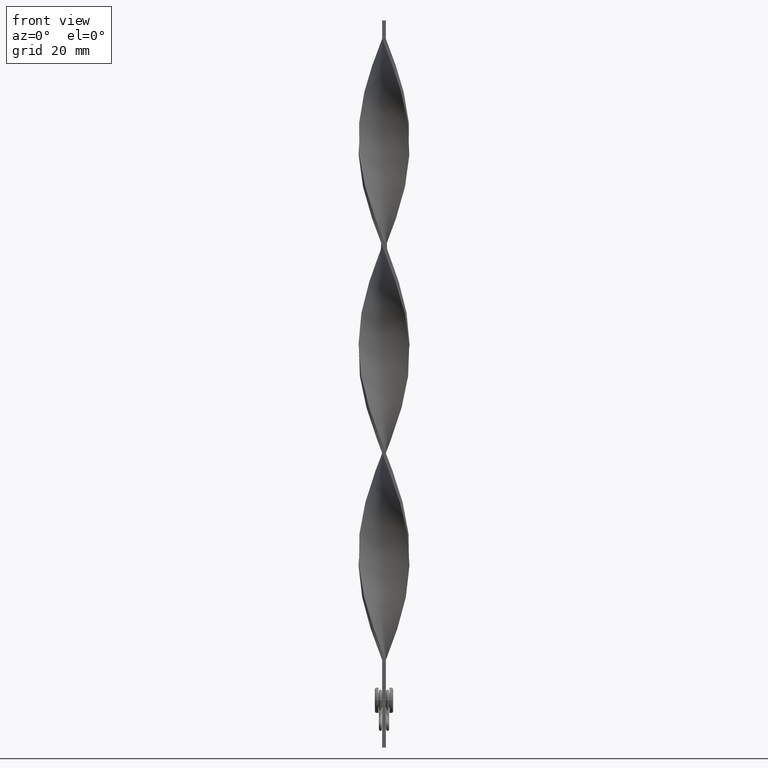
[diagram: clean part render]
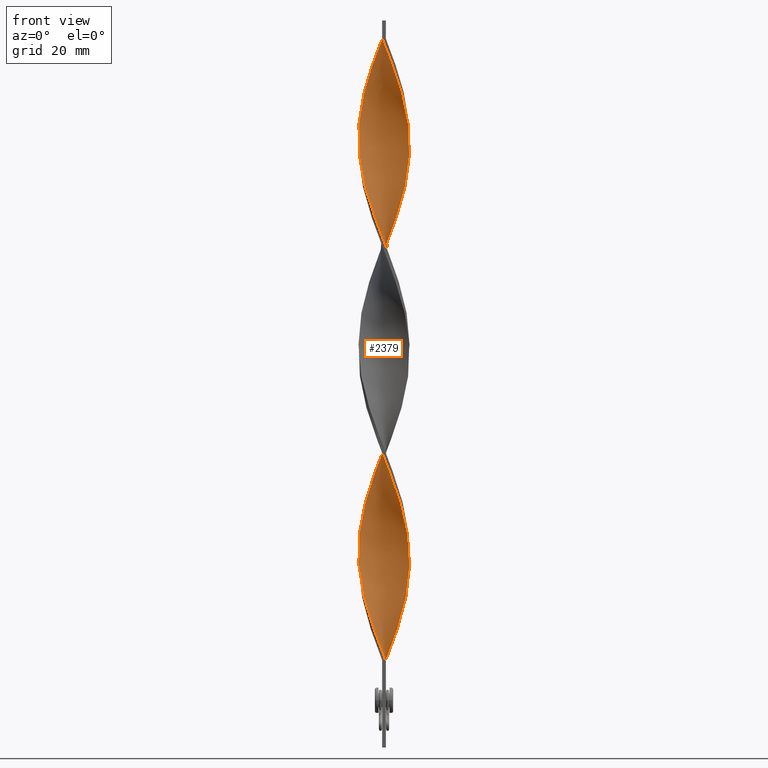
[diagram: same view with one face highlighted and labeled with its STEP entity id]
A machine part, front view. The second image highlights one B-rep face of the part: STEP entity #2379.
In plain terms, the highlighted face is a freeform B-spline surface patch.
Its self-contained STEP definition (entity closure, byte-faithful):
#7 = CARTESIAN_POINT ( 'NONE',  ( -6.156271851410108020, 3.424513031677501207, 117.4166666666666714 ) ) ;
#15 = CARTESIAN_POINT ( 'NONE',  ( -2.863987313672634372, -6.406838273838526554, 87.33333333333331439 ) ) ;
#61 = CARTESIAN_POINT ( 'NONE',  ( -3.619231300085454350, -6.043851206728636072, 35.08333333333333570 ) ) ;
#73 = CARTESIAN_POINT ( 'NONE',  ( -4.116491046246284924, -5.683704906676116053, 36.66666666666666430 ) ) ;
#84 = CARTESIAN_POINT ( 'NONE',  ( -1.112420644681468618, 6.956255668237037781, 79.41666666666665719 ) ) ;
#87 = EDGE_CURVE ( 'NONE', #4072, #1683, #2725, .T. ) ;
#89 = CARTESIAN_POINT ( 'NONE',  ( 4.613750792407117274, -5.323558606623595146, 180.7500000000000000 ) ) ;
#94 = CARTESIAN_POINT ( 'NONE',  ( 0.5000000000000007772, -6.999999999999999112, 24.00000000000000000 ) ) ;
#112 = CARTESIAN_POINT ( 'NONE',  ( -0.4999999999999981681, -7.000000000000000888, 194.9999999999999716 ) ) ;
#118 = CARTESIAN_POINT ( 'NONE',  ( -6.806830182251990102, -1.707941120174617300, 49.33333333333333570 ) ) ;
#126 = CARTESIAN_POINT ( 'NONE',  ( 1.924294692886725278, 6.748858417164193213, 87.33333333333331439 ) ) ;
#129 = CARTESIAN_POINT ( 'NONE',  ( -1.924294692886733049, 6.748858417164192325, 131.6666666666666572 ) ) ;
#135 = CARTESIAN_POINT ( 'NONE',  ( -0.1124206446814670773, -7.043744331762961330, 25.58333333333333215 ) ) ;
#154 = CARTESIAN_POINT ( 'NONE',  ( -6.980478359918920184, 0.7231333671624072812, 169.6666666666666572 ) ) ;
#174 = CARTESIAN_POINT ( 'NONE',  ( -2.863987313672636592, 6.406838273838523001, 188.6666666666666572 ) ) ;
#195 = CARTESIAN_POINT ( 'NONE',  ( -5.323558606623596035, 4.613750792407114609, 180.7500000000000000 ) ) ;
#219 = CARTESIAN_POINT ( 'NONE',  ( -3.066987298107779036, -6.312177826491070398, 147.5000000000000000 ) ) ;
#226 = CARTESIAN_POINT ( 'NONE',  ( -6.580504446253505613, 2.514743296130103278, 174.4166666666666288 ) ) ;
#248 = CARTESIAN_POINT ( 'NONE',  ( 5.683704906676116053, -4.116491046246284924, 122.1666666666666714 ) ) ;
#255 = CARTESIAN_POINT ( 'NONE',  ( -0.7231333671624075032, -6.980478359918920184, 141.1666666666666572 ) ) ;
#270 = CARTESIAN_POINT ( 'NONE',  ( -6.657404696266946864, 2.303461595667760875, 114.2499999999999858 ) ) ;
#277 = CARTESIAN_POINT ( 'NONE',  ( -4.441512372106935835, 5.468083801572033664, 183.9166666666666572 ) ) ;
#286 = CARTESIAN_POINT ( 'NONE',  ( 1.112420644681466841, 6.956255668237039558, 139.5833333333333428 ) ) ;
#296 = CARTESIAN_POINT ( 'NONE',  ( 6.956255668237039558, -1.112420644681466175, 54.08333333333332860 ) ) ;
#309 = CARTESIAN_POINT ( 'NONE',  ( -4.882535489365262826, -5.040917296989578134, 93.66666666666667140 ) ) ;
#319 = CARTESIAN_POINT ( 'NONE',  ( 6.806830182251991879, -1.707941120174615302, 55.66666666666666430 ) ) ;
#335 = CARTESIAN_POINT ( 'NONE',  ( 4.613750792407117274, -5.323558606623595146, 180.7500000000000000 ) ) ;
#347 = CARTESIAN_POINT ( 'NONE',  ( -6.748858417164193213, -1.924294692886732605, 103.1666666666666572 ) ) ;
#359 = CARTESIAN_POINT ( 'NONE',  ( 2.303461595667763984, 6.657404696266945976, 142.7500000000000000 ) ) ;
#369 = CARTESIAN_POINT ( 'NONE',  ( 4.116491046246288477, -5.683704906676115165, 68.33333333333332860 ) ) ;
#383 = CARTESIAN_POINT ( 'NONE',  ( 6.748858417164193213, 1.924294692886729052, 160.1666666666666572 ) ) ;
#387 = CARTESIAN_POINT ( 'NONE',  ( -4.441512372106935835, 5.468083801572033664, 69.91666666666665719 ) ) ;
#414 = CARTESIAN_POINT ( 'NONE',  ( 6.657404696266944200, 2.303461595667764428, 104.7500000000000142 ) ) ;
#418 = CARTESIAN_POINT ( 'NONE',  ( 4.116491046246288477, -5.683704906676115165, 182.3333333333333144 ) ) ;
#423 = CARTESIAN_POINT ( 'NONE',  ( -6.156271851410102691, -3.424513031677506092, 44.58333333333333570 ) ) ;
#435 = CARTESIAN_POINT ( 'NONE',  ( 0.5000000000000007772, -6.999999999999999112, 24.00000000000000000 ) ) ;
#439 = CARTESIAN_POINT ( 'NONE',  ( -3.066987298107785254, 6.312177826491068622, 128.5000000000000000 ) ) ;
#445 = FACE_OUTER_BOUND ( 'NONE', #3922, .T. ) ;
#451 = CARTESIAN_POINT ( 'NONE',  ( 2.514743296130106831, -6.580504446253505613, 187.0833333333333144 ) ) ;
#456 = CARTESIAN_POINT ( 'NONE',  ( -1.333846089643347721, -6.917212388074879037, 28.75000000000000000 ) ) ;
#460 = CARTESIAN_POINT ( 'NONE',  ( 0.7231333671624120552, -6.980478359918921960, 191.8333333333333144 ) ) ;
#465 = CARTESIAN_POINT ( 'NONE',  ( 0.7231333671624052828, 6.980478359918921072, 84.16666666666667140 ) ) ;
#474 = CARTESIAN_POINT ( 'NONE',  ( 1.333846089643351940, -6.917212388074879925, 190.2499999999999716 ) ) ;
#484 = CARTESIAN_POINT ( 'NONE',  ( -4.613750792407119050, 5.323558606623594258, 123.7500000000000000 ) ) ;
#507 = CARTESIAN_POINT ( 'NONE',  ( -6.980478359918920184, 0.7231333671624072812, 55.66666666666666430 ) ) ;
#516 = CARTESIAN_POINT ( 'NONE',  ( 6.956255668237039558, -1.112420644681465953, 54.08333333333332860 ) ) ;
#523 = CARTESIAN_POINT ( 'NONE',  ( -6.580504446253505613, 2.514743296130103278, 174.4166666666666288 ) ) ;
#537 = CARTESIAN_POINT ( 'NONE',  ( 5.468083801572039881, -4.441512372106931394, 63.58333333333332860 ) ) ;
#546 = CARTESIAN_POINT ( 'NONE',  ( 6.999999999999999112, 0.5000000000000021094, 109.4999999999999858 ) ) ;
#552 = CARTESIAN_POINT ( 'NONE',  ( -6.156271851410102691, -3.424513031677505648, 158.5833333333333144 ) ) ;
#560 = CARTESIAN_POINT ( 'NONE',  ( 6.806830182251991879, -1.707941120174615302, 55.66666666666666430 ) ) ;
#567 = CARTESIAN_POINT ( 'NONE',  ( 5.812177826491068622, 3.933012701892222740, 100.0000000000000000 ) ) ;
#576 = CARTESIAN_POINT ( 'NONE',  ( 6.980478359918921072, -0.7231333671624048387, 112.6666666666666714 ) ) ;
#594 = CARTESIAN_POINT ( 'NONE',  ( 6.956255668237037781, 1.112420644681469062, 107.9166666666666572 ) ) ;
#601 = CARTESIAN_POINT ( 'NONE',  ( -6.748858417164193213, 1.924294692886725722, 172.8333333333333144 ) ) ;
#621 = CARTESIAN_POINT ( 'NONE',  ( -6.806830182251990102, -1.707941120174617300, 163.3333333333333428 ) ) ;
#628 = CARTESIAN_POINT ( 'NONE',  ( -4.882535489365265491, 5.040917296989575469, 182.3333333333333144 ) ) ;
#635 = CARTESIAN_POINT ( 'NONE',  ( -7.000000000000000888, 0.4999999999999977240, 109.4999999999999858 ) ) ;
#643 = CARTESIAN_POINT ( 'NONE',  ( 5.468083801572039881, -4.441512372106931394, 63.58333333333332149 ) ) ;
#650 = CARTESIAN_POINT ( 'NONE',  ( 0.5000000000000007772, -6.999999999999999112, 137.9999999999999716 ) ) ;
#656 = CARTESIAN_POINT ( 'NONE',  ( 5.468083801572039881, -4.441512372106931394, 177.5833333333333144 ) ) ;
#665 = CARTESIAN_POINT ( 'NONE',  ( 6.580504446253505613, 2.514743296130105943, 44.58333333333333570 ) ) ;
#679 = CARTESIAN_POINT ( 'NONE',  ( 6.156271851410106244, -3.424513031677503871, 174.4166666666666288 ) ) ;
#690 = CARTESIAN_POINT ( 'NONE',  ( -4.441512372106931394, -5.468083801572039881, 92.08333333333332860 ) ) ;
#706 = CARTESIAN_POINT ( 'NONE',  ( 3.424513031677504760, 6.156271851410105356, 145.9166666666666572 ) ) ;
#717 = CARTESIAN_POINT ( 'NONE',  ( 7.043744331762962219, 0.1124206446814703247, 50.91666666666665719 ) ) ;
#730 = CARTESIAN_POINT ( 'NONE',  ( -2.863987313672634372, -6.406838273838526554, 87.33333333333331439 ) ) ;
#739 = CARTESIAN_POINT ( 'NONE',  ( 0.4999999999999990563, 7.000000000000000888, 24.00000000000000000 ) ) ;
#740 = CARTESIAN_POINT ( 'NONE',  ( 6.748858417164193213, 1.924294692886729052, 46.16666666666667140 ) ) ;
#757 = CARTESIAN_POINT ( 'NONE',  ( 6.156271851410100915, 3.424513031677509645, 101.5833333333333286 ) ) ;
#768 = CARTESIAN_POINT ( 'NONE',  ( 0.1124206446814655508, 7.043744331762961330, 82.58333333333334281 ) ) ;
#781 = CARTESIAN_POINT ( 'NONE',  ( -5.683704906676116053, 4.116491046246284924, 65.16666666666667140 ) ) ;
#785 = CARTESIAN_POINT ( 'NONE',  ( 6.657404696266945976, -2.303461595667763095, 171.2499999999999716 ) ) ;
#790 = CARTESIAN_POINT ( 'NONE',  ( -6.043851206728636960, 3.619231300085453018, 63.58333333333332149 ) ) ;
#805 = CARTESIAN_POINT ( 'NONE',  ( 6.806830182251991879, -1.707941120174615302, 169.6666666666666572 ) ) ;
#810 = CARTESIAN_POINT ( 'NONE',  ( 1.333846089643347943, 6.917212388074879037, 85.75000000000000000 ) ) ;
#823 = CARTESIAN_POINT ( 'NONE',  ( -1.924294692886725722, -6.748858417164193213, 30.33333333333333215 ) ) ;
#827 = CARTESIAN_POINT ( 'NONE',  ( 1.112420644681466841, 6.956255668237039558, 139.5833333333333712 ) ) ;
#833 = CARTESIAN_POINT ( 'NONE',  ( -5.323558606623596035, 4.613750792407114609, 66.75000000000000000 ) ) ;
#857 = CARTESIAN_POINT ( 'NONE',  ( -6.406838273838523001, -2.863987313672636148, 46.16666666666667140 ) ) ;
#867 = CARTESIAN_POINT ( 'NONE',  ( 1.707941120174615524, 6.806830182251991879, 27.16666666666666430 ) ) ;
#875 = CARTESIAN_POINT ( 'NONE',  ( 2.303461595667764872, -6.657404696266944200, 133.2500000000000000 ) ) ;
#894 = CARTESIAN_POINT ( 'NONE',  ( -1.112420644681468618, 6.956255668237037781, 193.4166666666666572 ) ) ;
#903 = CARTESIAN_POINT ( 'NONE',  ( 6.312177826491069510, -3.066987298107780369, 119.0000000000000000 ) ) ;
#921 = CARTESIAN_POINT ( 'NONE',  ( 6.580504446253506501, -2.514743296130099726, 117.4166666666666714 ) ) ;
#927 = CARTESIAN_POINT ( 'NONE',  ( 6.043851206728636072, -3.619231300085454350, 120.5833333333333144 ) ) ;
#934 = CARTESIAN_POINT ( 'NONE',  ( 1.333846089643351940, -6.917212388074879925, 76.25000000000000000 ) ) ;
#942 = CARTESIAN_POINT ( 'NONE',  ( 6.917212388074879925, -1.333846089643344390, 114.2499999999999858 ) ) ;
#949 = CARTESIAN_POINT ( 'NONE',  ( 6.917212388074879925, -1.333846089643344390, 114.2499999999999858 ) ) ;
#956 = CARTESIAN_POINT ( 'NONE',  ( 4.441512372106932283, 5.468083801572037217, 35.08333333333333570 ) ) ;
#967 = CARTESIAN_POINT ( 'NONE',  ( 1.707941120174617300, -6.806830182251990102, 134.8333333333333428 ) ) ;
#972 = CARTESIAN_POINT ( 'NONE',  ( -5.683704906676116053, 4.116491046246284924, 179.1666666666666572 ) ) ;
#979 = CARTESIAN_POINT ( 'NONE',  ( 6.406838273838526554, -2.863987313672634816, 172.8333333333333144 ) ) ;
#985 = EDGE_CURVE ( 'NONE', #4072, #1253, #2653, .T. ) ;
#991 = CARTESIAN_POINT ( 'NONE',  ( -2.303461595667764428, -6.657404696266945976, 85.75000000000000000 ) ) ;
#997 = CARTESIAN_POINT ( 'NONE',  ( 7.043744331762961330, -0.1124206446814651067, 111.0833333333333286 ) ) ;
#1002 = CARTESIAN_POINT ( 'NONE',  ( -1.333846089643349497, 6.917212388074880813, 133.2500000000000000 ) ) ;
#1013 = CARTESIAN_POINT ( 'NONE',  ( 1.707941120174615524, 6.806830182251991879, 27.16666666666666430 ) ) ;
#1025 = CARTESIAN_POINT ( 'NONE',  ( 6.312177826491070398, 3.066987298107783033, 157.0000000000000000 ) ) ;
#1036 = CARTESIAN_POINT ( 'NONE',  ( 1.924294692886729052, -6.748858417164193213, 74.66666666666665719 ) ) ;
#1050 = CARTESIAN_POINT ( 'NONE',  ( -4.116491046246289365, 5.683704906676114277, 125.3333333333333286 ) ) ;
#1060 = CARTESIAN_POINT ( 'NONE',  ( 2.863987313672634816, 6.406838273838526554, 30.33333333333333215 ) ) ;
#1078 = CARTESIAN_POINT ( 'NONE',  ( 6.980478359918921960, 0.7231333671624100567, 163.3333333333333428 ) ) ;
#1082 = CARTESIAN_POINT ( 'NONE',  ( -6.043851206728636960, 3.619231300085453018, 63.58333333333332860 ) ) ;
#1086 = CARTESIAN_POINT ( 'NONE',  ( -5.683704906676115165, -4.116491046246288477, 96.83333333333332860 ) ) ;
#1100 = CARTESIAN_POINT ( 'NONE',  ( 5.812177826491068622, 3.933012701892222740, 100.0000000000000000 ) ) ;
#1111 = CARTESIAN_POINT ( 'NONE',  ( -1.112420644681468618, 6.956255668237037781, 79.41666666666665719 ) ) ;
#1122 = CARTESIAN_POINT ( 'NONE',  ( -0.7231333671624075032, -6.980478359918920184, 27.16666666666666430 ) ) ;
#1127 = CARTESIAN_POINT ( 'NONE',  ( 6.956255668237039558, -1.112420644681466175, 168.0833333333333428 ) ) ;
#1145 = CARTESIAN_POINT ( 'NONE',  ( -3.933012701892219187, 5.812177826491070398, 71.50000000000001421 ) ) ;
#1150 = CARTESIAN_POINT ( 'NONE',  ( 6.580504446253505613, 2.514743296130105943, 158.5833333333333144 ) ) ;
#1158 = CARTESIAN_POINT ( 'NONE',  ( 1.924294692886725278, 6.748858417164193213, 87.33333333333331439 ) ) ;
#1168 = CARTESIAN_POINT ( 'NONE',  ( -6.999999999999999112, -0.5000000000000012212, 52.50000000000000000 ) ) ;
#1173 = CARTESIAN_POINT ( 'NONE',  ( 3.619231300085459235, -6.043851206728634295, 183.9166666666666572 ) ) ;
#1178 = CARTESIAN_POINT ( 'NONE',  ( -6.312177826491070398, 3.066987298107777704, 62.00000000000000000 ) ) ;
#1189 = CARTESIAN_POINT ( 'NONE',  ( -0.5000000000000016653, 6.999999999999999112, 194.9999999999999716 ) ) ;
#1192 = CARTESIAN_POINT ( 'NONE',  ( 2.514743296130106387, -6.580504446253505613, 187.0833333333333144 ) ) ;
#1197 = CARTESIAN_POINT ( 'NONE',  ( -1.924294692886725722, -6.748858417164193213, 30.33333333333333215 ) ) ;
#1223 = CARTESIAN_POINT ( 'NONE',  ( -3.619231300085453906, -6.043851206728636072, 149.0833333333333144 ) ) ;
#1233 = CARTESIAN_POINT ( 'NONE',  ( 6.406838273838526554, -2.863987313672634816, 58.83333333333333570 ) ) ;
#1239 = CARTESIAN_POINT ( 'NONE',  ( 2.863987313672640589, -6.406838273838521225, 131.6666666666666572 ) ) ;
#1253 = VERTEX_POINT ( 'NONE', #3161 ) ;
#1255 = CARTESIAN_POINT ( 'NONE',  ( 4.882535489365262826, 5.040917296989578134, 36.66666666666666430 ) ) ;
#1261 = CARTESIAN_POINT ( 'NONE',  ( 4.116491046246284924, 5.683704906676116053, 93.66666666666667140 ) ) ;
#1269 = CARTESIAN_POINT ( 'NONE',  ( 6.580504446253506501, -2.514743296130099726, 117.4166666666666714 ) ) ;
#1290 = CARTESIAN_POINT ( 'NONE',  ( 6.806830182251990102, 1.707941120174616856, 106.3333333333333286 ) ) ;
#1300 = CARTESIAN_POINT ( 'NONE',  ( -6.406838273838523001, -2.863987313672636148, 160.1666666666666572 ) ) ;
#1314 = CARTESIAN_POINT ( 'NONE',  ( -6.043851206728636960, 3.619231300085453018, 177.5833333333333144 ) ) ;
#1320 = CARTESIAN_POINT ( 'NONE',  ( 4.441512372106936724, -5.468083801572033664, 126.9166666666666714 ) ) ;
#1326 = CARTESIAN_POINT ( 'NONE',  ( -3.619231300085460568, 6.043851206728634295, 126.9166666666666714 ) ) ;
#1338 = CARTESIAN_POINT ( 'NONE',  ( 1.333846089643351940, -6.917212388074879925, 76.25000000000000000 ) ) ;
#1344 = CARTESIAN_POINT ( 'NONE',  ( -6.917212388074879037, 1.333846089643346833, 171.2499999999999716 ) ) ;
#1349 = CARTESIAN_POINT ( 'NONE',  ( -6.580504446253503836, -2.514743296130109940, 101.5833333333333286 ) ) ;
#1367 = CARTESIAN_POINT ( 'NONE',  ( 6.980478359918921960, 0.7231333671624100567, 49.33333333333333570 ) ) ;
#1378 = CARTESIAN_POINT ( 'NONE',  ( -5.812177826491071286, 3.933012701892220075, 119.0000000000000000 ) ) ;
#1388 = CARTESIAN_POINT ( 'NONE',  ( -1.707941120174613525, -6.806830182251992767, 84.16666666666667140 ) ) ;
#1402 = CARTESIAN_POINT ( 'NONE',  ( -6.956255668237039558, 1.112420644681465065, 111.0833333333333286 ) ) ;
#1412 = CARTESIAN_POINT ( 'NONE',  ( -6.312177826491069510, -3.066987298107785254, 100.0000000000000000 ) ) ;
#1428 = CARTESIAN_POINT ( 'NONE',  ( -7.043744331762963107, -0.1124206446814695753, 107.9166666666666572 ) ) ;
#1438 = CARTESIAN_POINT ( 'NONE',  ( -3.424513031677504316, -6.156271851410106244, 88.91666666666667140 ) ) ;
#1459 = CARTESIAN_POINT ( 'NONE',  ( -6.580504446253505613, 2.514743296130103278, 60.41666666666666430 ) ) ;
#1462 = CARTESIAN_POINT ( 'NONE',  ( -0.4999999999999993339, -2.333333333333334814, 194.9999999999999716 ) ) ;
#1463 = CARTESIAN_POINT ( 'NONE',  ( 0.4999999999999990563, 7.000000000000000888, 137.9999999999999716 ) ) ;
#1469 = CARTESIAN_POINT ( 'NONE',  ( -3.933012701892219187, 5.812177826491070398, 71.50000000000001421 ) ) ;
#1478 = CARTESIAN_POINT ( 'NONE',  ( -6.917212388074879037, 1.333846089643346833, 57.25000000000000000 ) ) ;
#1488 = VERTEX_POINT ( 'NONE', #2117 ) ;
#1505 = CARTESIAN_POINT ( 'NONE',  ( -3.619231300085460123, 6.043851206728634295, 126.9166666666666714 ) ) ;
#1513 = CARTESIAN_POINT ( 'NONE',  ( -0.5000000000000016653, 6.999999999999999112, 80.99999999999998579 ) ) ;
#1521 = VECTOR ( 'NONE', #4175, 1000.000000000000000 ) ;
#1528 = CARTESIAN_POINT ( 'NONE',  ( -4.613750792407115497, -5.323558606623596035, 38.24999999999999289 ) ) ;
#1548 = CARTESIAN_POINT ( 'NONE',  ( -5.040917296989576357, -4.882535489365264603, 153.8333333333333144 ) ) ;
#1551 = CARTESIAN_POINT ( 'NONE',  ( 2.863987313672634816, 6.406838273838526554, 144.3333333333333428 ) ) ;
#1575 = CARTESIAN_POINT ( 'NONE',  ( 0.5000000000000007772, -6.999999999999999112, 137.9999999999999716 ) ) ;
#1577 = B_SPLINE_CURVE_WITH_KNOTS ( 'NONE', 3,
 ( #3224, #3247, #1462, #3935 ),
 .UNSPECIFIED., .F., .F.,
 ( 4, 4 ),
 ( 0.000000000000000000, 1.000000000000000000 ),
 .UNSPECIFIED. ) ;
#1592 = CARTESIAN_POINT ( 'NONE',  ( 1.112420644681466841, 6.956255668237039558, 25.58333333333333215 ) ) ;
#1599 = CARTESIAN_POINT ( 'NONE',  ( -1.924294692886725722, -6.748858417164193213, 144.3333333333333428 ) ) ;
#1612 = CARTESIAN_POINT ( 'NONE',  ( 5.040917296989578134, -4.882535489365263714, 65.16666666666667140 ) ) ;
#1618 = CARTESIAN_POINT ( 'NONE',  ( 7.043744331762961330, -0.1124206446814651067, 111.0833333333333286 ) ) ;
#1635 = CARTESIAN_POINT ( 'NONE',  ( 5.683704906676116053, 4.116491046246287588, 39.83333333333332860 ) ) ;
#1647 = CARTESIAN_POINT ( 'NONE',  ( 6.156271851410100915, 3.424513031677509645, 101.5833333333333428 ) ) ;
#1655 = CARTESIAN_POINT ( 'NONE',  ( 4.882535489365266379, -5.040917296989574581, 125.3333333333333286 ) ) ;
#1678 = CARTESIAN_POINT ( 'NONE',  ( 5.323558606623596923, -4.613750792407114609, 123.7500000000000000 ) ) ;
#1683 = VERTEX_POINT ( 'NONE', #2979 ) ;
#1686 = CARTESIAN_POINT ( 'NONE',  ( 5.323558606623596923, -4.613750792407113721, 123.7500000000000000 ) ) ;
#1694 =( BOUNDED_CURVE ( )  B_SPLINE_CURVE ( 2, ( #435, #3623, #1122, #456, #823, #3289, #3974, #61, #2158, #1528, #3267, #4343, #2246, #1864, #3998, #2940, #3244, #4319, #1168, #3644, #2522, #1478, #2543, #1459, #2589, #1082, #781, #1841, #2892, #387, #1145, #3952, #2180, #4019, #2568, #84, #2226, #3665, #1907, #3317, #126, #2851, #4278, #2504, #3576, #1814, #2876, #4302, #1100, #757, #3601, #414, #3764, #2058, #3469, #997, #576, #949, #2009, #1269, #903, #927, #3110, #1686, #1655, #1320, #3446, #3846, #2419, #3065, #4198, #4121, #650, #4492, #255, #2718, #3089, #3493, #2962, #3819, #2079, #4514, #1548, #2369, #4146, #552, #1300, #2744, #2668, #3418, #4388, #3794, #4170, #1344, #601, #226, #4096, #2032, #972, #2394, #628, #277, #1706, #3740, #4537, #2764, #4467, #3039, #1189 ),
 .UNSPECIFIED., .F., .T. ) 
 B_SPLINE_CURVE_WITH_KNOTS ( ( 3, 2, 2, 2, 2, 2, 2, 2, 2, 2, 2, 2, 2, 2, 2, 2, 2, 2, 2, 2, 2, 2, 2, 2, 2, 2, 2, 2, 2, 2, 2, 2, 2, 2, 2, 2, 2, 2, 2, 2, 2, 2, 2, 2, 2, 2, 2, 2, 2, 2, 2, 2, 2, 2, 3 ),
 ( 0.000000000000000000, 0.01388888888888888812, 0.02777777777777777624, 0.04166666666666666435, 0.05555555555555555247, 0.06944444444444444753, 0.08333333333333332871, 0.09722222222222222376, 0.1111111111111111049, 0.1250000000000000000, 0.1388888888888888951, 0.1527777777777777901, 0.1666666666666666574, 0.1805555555555555525, 0.1944444444444444475, 0.2083333333333333426, 0.2222222222222222099, 0.2361111111111110772, 0.2500000000000000000, 0.2638888888888888951, 0.2777777777777777901, 0.2916666666666666852, 0.3055555555555555802, 0.3194444444444444198, 0.3333333333333333148, 0.3472222222222221544, 0.3611111111111111049, 0.3750000000000000000, 0.3888888888888888951, 0.4027777777777778456, 0.4166666666666666852, 0.4305555555555555802, 0.4444444444444444198, 0.4583333333333333148, 0.4722222222222221544, 0.4861111111111111049, 0.5000000000000000000, 0.5138888888888888395, 0.5277777777777777901, 0.5416666666666666297, 0.5555555555555555802, 0.5694444444444444198, 0.5833333333333333703, 0.5972222222222222099, 0.6111111111111111605, 0.6250000000000000000, 0.6388888888888888395, 0.6527777777777777901, 0.6666666666666666297, 0.6805555555555556912, 0.6944444444444443088, 0.7083333333333333703, 0.7222222222222222099, 0.7361111111111111605, 0.7500000000000000000 ),
 .UNSPECIFIED. ) 
 CURVE ( )  GEOMETRIC_REPRESENTATION_ITEM ( )  RATIONAL_B_SPLINE_CURVE ( ( 1.000000000000000000, 0.9961946980917455452, 1.000000000000000000, 0.9961946980917455452, 1.000000000000000000, 0.9961946980917455452, 1.000000000000000000, 0.9961946980917455452, 1.000000000000000000, 0.9961946980917455452, 1.000000000000000000, 0.9961946980917455452, 1.000000000000000000, 0.9961946980917455452, 1.000000000000000000, 0.9961946980917455452, 1.000000000000000000, 0.9961946980917455452, 1.000000000000000000, 0.9961946980917455452, 1.000000000000000000, 0.9961946980917455452, 1.000000000000000000, 0.9961946980917455452, 1.000000000000000000, 0.9961946980917455452, 1.000000000000000000, 0.9961946980917455452, 1.000000000000000000, 0.9961946980917455452, 1.000000000000000000, 0.9961946980917455452, 1.000000000000000000, 0.9961946980917455452, 1.000000000000000000, 0.9961946980917455452, 1.000000000000000000, 0.9961946980917455452, 1.000000000000000000, 0.9961946980917455452, 1.000000000000000000, 0.9961946980917455452, 1.000000000000000000, 0.9961946980917455452, 1.000000000000000000, 0.9961946980917455452, 1.000000000000000000, 0.9961946980917455452, 1.000000000000000000, 0.9961946980917455452, 1.000000000000000000, 0.9961946980917455452, 1.000000000000000000, 0.9961946980917455452, 1.000000000000000000, 0.9961946980917455452, 1.000000000000000000, 0.9961946980917455452, 1.000000000000000000, 0.9961946980917455452, 1.000000000000000000, 0.9961946980917455452, 1.000000000000000000, 0.9961946980917455452, 1.000000000000000000, 0.9961946980917455452, 1.000000000000000000, 0.9961946980917455452, 1.000000000000000000, 0.9961946980917455452, 1.000000000000000000, 0.9961946980917455452, 1.000000000000000000, 0.9961946980917455452, 1.000000000000000000, 0.9961946980917455452, 1.000000000000000000, 0.9961946980917455452, 1.000000000000000000, 0.9961946980917455452, 1.000000000000000000, 0.9961946980917455452, 1.000000000000000000, 0.9961946980917455452, 1.000000000000000000, 0.9961946980917455452, 1.000000000000000000, 0.9961946980917455452, 1.000000000000000000, 0.9961946980917455452, 1.000000000000000000, 0.9961946980917455452, 1.000000000000000000, 0.9961946980917455452, 1.000000000000000000, 0.9961946980917455452, 1.000000000000000000, 0.9961946980917455452, 1.000000000000000000, 0.9961946980917455452, 1.000000000000000000, 0.9961946980917455452, 1.000000000000000000, 0.9961946980917455452, 1.000000000000000000, 0.9961946980917455452, 1.000000000000000000, 0.9961946980917455452, 1.000000000000000000 ) ) 
 REPRESENTATION_ITEM ( '' )  );
#1700 = CARTESIAN_POINT ( 'NONE',  ( -5.812177826491071286, 3.933012701892220075, 119.0000000000000000 ) ) ;
#1706 = CARTESIAN_POINT ( 'NONE',  ( -3.933012701892219187, 5.812177826491070398, 185.5000000000000000 ) ) ;
#1713 = CARTESIAN_POINT ( 'NONE',  ( 5.812177826491072175, -3.933012701892217411, 176.0000000000000000 ) ) ;
#1724 = CARTESIAN_POINT ( 'NONE',  ( 6.406838273838526554, -2.863987313672634816, 58.83333333333333570 ) ) ;
#1735 = CARTESIAN_POINT ( 'NONE',  ( -6.748858417164193213, -1.924294692886732605, 103.1666666666666572 ) ) ;
#1748 = CARTESIAN_POINT ( 'NONE',  ( 6.156271851410106244, -3.424513031677504316, 60.41666666666667140 ) ) ;
#1762 = CARTESIAN_POINT ( 'NONE',  ( -3.933012701892217411, -5.812177826491073063, 90.50000000000000000 ) ) ;
#1772 = CARTESIAN_POINT ( 'NONE',  ( -6.406838273838527442, 2.863987313672630819, 115.8333333333333428 ) ) ;
#1786 = CARTESIAN_POINT ( 'NONE',  ( 3.933012701892218299, 5.812177826491072175, 147.5000000000000000 ) ) ;
#1796 = CARTESIAN_POINT ( 'NONE',  ( 3.066987298107781701, -6.312177826491071286, 71.50000000000001421 ) ) ;
#1810 = CARTESIAN_POINT ( 'NONE',  ( 6.956255668237039558, -1.112420644681465953, 168.0833333333333428 ) ) ;
#1814 = CARTESIAN_POINT ( 'NONE',  ( 4.613750792407114609, 5.323558606623596923, 95.25000000000000000 ) ) ;
#1841 = CARTESIAN_POINT ( 'NONE',  ( -5.323558606623596035, 4.613750792407114609, 66.75000000000000000 ) ) ;
#1845 = CARTESIAN_POINT ( 'NONE',  ( 6.312177826491070398, 3.066987298107783033, 157.0000000000000000 ) ) ;
#1851 = CARTESIAN_POINT ( 'NONE',  ( -6.917212388074879037, 1.333846089643346833, 57.25000000000000000 ) ) ;
#1864 = CARTESIAN_POINT ( 'NONE',  ( -6.156271851410102691, -3.424513031677505648, 44.58333333333333570 ) ) ;
#1874 = CARTESIAN_POINT ( 'NONE',  ( -2.863987313672636592, 6.406838273838523001, 74.66666666666665719 ) ) ;
#1890 = CARTESIAN_POINT ( 'NONE',  ( 0.1124206446814692423, -7.043744331762962219, 193.4166666666666572 ) ) ;
#1897 = CARTESIAN_POINT ( 'NONE',  ( -1.333846089643347721, -6.917212388074879037, 28.75000000000000000 ) ) ;
#1903 = CARTESIAN_POINT ( 'NONE',  ( 0.7231333671624120552, -6.980478359918921960, 191.8333333333333144 ) ) ;
#1907 = CARTESIAN_POINT ( 'NONE',  ( 0.7231333671624052828, 6.980478359918921072, 84.16666666666667140 ) ) ;
#1912 = CARTESIAN_POINT ( 'NONE',  ( 7.043744331762962219, 0.1124206446814703247, 164.9166666666666572 ) ) ;
#1934 = CARTESIAN_POINT ( 'NONE',  ( -5.683704906676116053, 4.116491046246284924, 65.16666666666667140 ) ) ;
#1945 = ORIENTED_EDGE ( 'NONE', *, *, #985, .T. ) ;
#1948 = CARTESIAN_POINT ( 'NONE',  ( 7.000000000000000888, -0.4999999999999986122, 52.50000000000000000 ) ) ;
#1953 = CARTESIAN_POINT ( 'NONE',  ( -5.683704906676116053, 4.116491046246284924, 179.1666666666666572 ) ) ;
#1977 = CARTESIAN_POINT ( 'NONE',  ( 4.613750792407114609, 5.323558606623596923, 95.25000000000000000 ) ) ;
#1995 = CARTESIAN_POINT ( 'NONE',  ( 6.043851206728636072, 3.619231300085457015, 41.41666666666667140 ) ) ;
#2002 = CARTESIAN_POINT ( 'NONE',  ( -4.116491046246284924, -5.683704906676116053, 150.6666666666666572 ) ) ;
#2009 = CARTESIAN_POINT ( 'NONE',  ( 6.748858417164194101, -1.924294692886721725, 115.8333333333333428 ) ) ;
#2017 = CARTESIAN_POINT ( 'NONE',  ( 3.424513031677504760, 6.156271851410105356, 31.91666666666666430 ) ) ;
#2026 = CARTESIAN_POINT ( 'NONE',  ( 6.980478359918921072, -0.7231333671624048387, 112.6666666666666714 ) ) ;
#2032 = CARTESIAN_POINT ( 'NONE',  ( -6.043851206728636960, 3.619231300085453018, 177.5833333333333144 ) ) ;
#2053 = CARTESIAN_POINT ( 'NONE',  ( -4.441512372106935835, 5.468083801572034552, 183.9166666666666572 ) ) ;
#2058 = CARTESIAN_POINT ( 'NONE',  ( 6.956255668237037781, 1.112420644681469062, 107.9166666666666572 ) ) ;
#2063 = CARTESIAN_POINT ( 'NONE',  ( -2.514743296130110384, 6.580504446253503836, 130.0833333333333144 ) ) ;
#2072 = CARTESIAN_POINT ( 'NONE',  ( 4.882535489365262826, 5.040917296989578134, 36.66666666666666430 ) ) ;
#2079 = CARTESIAN_POINT ( 'NONE',  ( -4.116491046246284924, -5.683704906676116053, 150.6666666666666572 ) ) ;
#2086 = CARTESIAN_POINT ( 'NONE',  ( -6.917212388074880813, -1.333846089643349053, 104.7500000000000142 ) ) ;
#2095 = CARTESIAN_POINT ( 'NONE',  ( 4.441512372106932283, 5.468083801572037217, 35.08333333333333570 ) ) ;
#2107 = CARTESIAN_POINT ( 'NONE',  ( 5.040917296989578134, -4.882535489365263714, 179.1666666666666572 ) ) ;
#2117 = CARTESIAN_POINT ( 'NONE',  ( -0.5000000000000016653, 6.999999999999999112, 194.9999999999999716 ) ) ;
#2119 = CARTESIAN_POINT ( 'NONE',  ( -3.933012701892217411, -5.812177826491073063, 90.50000000000000000 ) ) ;
#2131 = CARTESIAN_POINT ( 'NONE',  ( -5.683704906676115165, -4.116491046246288477, 96.83333333333332860 ) ) ;
#2142 = CARTESIAN_POINT ( 'NONE',  ( 5.812177826491072175, -3.933012701892217411, 62.00000000000000000 ) ) ;
#2154 = CARTESIAN_POINT ( 'NONE',  ( -6.980478359918921960, -0.7231333671624095016, 106.3333333333333286 ) ) ;
#2158 = CARTESIAN_POINT ( 'NONE',  ( -4.116491046246284924, -5.683704906676116053, 36.66666666666666430 ) ) ;
#2180 = CARTESIAN_POINT ( 'NONE',  ( -2.863987313672636592, 6.406838273838523001, 74.66666666666665719 ) ) ;
#2201 = CARTESIAN_POINT ( 'NONE',  ( 1.924294692886729052, -6.748858417164193213, 188.6666666666666572 ) ) ;
#2226 = CARTESIAN_POINT ( 'NONE',  ( -0.5000000000000016653, 6.999999999999999112, 80.99999999999998579 ) ) ;
#2230 = CARTESIAN_POINT ( 'NONE',  ( 1.924294692886729052, -6.748858417164193213, 188.6666666666666572 ) ) ;
#2236 = CARTESIAN_POINT ( 'NONE',  ( 3.619231300085453018, 6.043851206728636960, 92.08333333333332860 ) ) ;
#2246 = CARTESIAN_POINT ( 'NONE',  ( -5.812177826491069510, -3.933012701892220075, 43.00000000000000000 ) ) ;
#2250 = CARTESIAN_POINT ( 'NONE',  ( 5.683704906676116053, 4.116491046246287588, 153.8333333333333144 ) ) ;
#2257 = CARTESIAN_POINT ( 'NONE',  ( -2.303461595667767536, 6.657404696266942423, 76.25000000000000000 ) ) ;
#2289 = CARTESIAN_POINT ( 'NONE',  ( 6.580504446253505613, 2.514743296130106387, 44.58333333333333570 ) ) ;
#2295 = CARTESIAN_POINT ( 'NONE',  ( 1.112420644681469506, -6.956255668237037781, 136.4166666666666856 ) ) ;
#2308 = CARTESIAN_POINT ( 'NONE',  ( 5.812177826491072175, -3.933012701892217411, 62.00000000000000000 ) ) ;
#2314 = CARTESIAN_POINT ( 'NONE',  ( 6.043851206728636072, -3.619231300085453906, 120.5833333333333286 ) ) ;
#2332 = CARTESIAN_POINT ( 'NONE',  ( 4.613750792407117274, -5.323558606623595146, 66.75000000000000000 ) ) ;
#2339 = CARTESIAN_POINT ( 'NONE',  ( 3.933012701892222740, -5.812177826491067734, 128.5000000000000000 ) ) ;
#2354 = CARTESIAN_POINT ( 'NONE',  ( 0.7231333671624120552, -6.980478359918921960, 77.83333333333334281 ) ) ;
#2362 = CARTESIAN_POINT ( 'NONE',  ( -6.917212388074879037, 1.333846089643346833, 171.2499999999999716 ) ) ;
#2369 = CARTESIAN_POINT ( 'NONE',  ( -5.468083801572035441, -4.441512372106933171, 155.4166666666666572 ) ) ;
#2377 = CARTESIAN_POINT ( 'NONE',  ( 5.323558606623596035, 4.613750792407117274, 38.24999999999999289 ) ) ;
#2379 = ADVANCED_FACE ( 'NONE', ( #445 ), #3891, .T. ) ;
#2389 = CARTESIAN_POINT ( 'NONE',  ( -5.812177826491069510, -3.933012701892220075, 157.0000000000000000 ) ) ;
#2394 = CARTESIAN_POINT ( 'NONE',  ( -5.323558606623596035, 4.613750792407114609, 180.7500000000000000 ) ) ;
#2403 = CARTESIAN_POINT ( 'NONE',  ( -6.657404696266946864, 2.303461595667760875, 114.2499999999999858 ) ) ;
#2414 = CARTESIAN_POINT ( 'NONE',  ( -6.043851206728634295, -3.619231300085459235, 98.41666666666664298 ) ) ;
#2419 = CARTESIAN_POINT ( 'NONE',  ( 2.863987313672640589, -6.406838273838521225, 131.6666666666666572 ) ) ;
#2424 = CARTESIAN_POINT ( 'NONE',  ( 7.000000000000000888, -0.4999999999999986122, 166.4999999999999716 ) ) ;
#2432 = CARTESIAN_POINT ( 'NONE',  ( 5.323558606623596035, 4.613750792407117274, 38.24999999999998579 ) ) ;
#2447 = CARTESIAN_POINT ( 'NONE',  ( 6.917212388074880813, 1.333846089643349941, 161.7499999999999716 ) ) ;
#2456 = CARTESIAN_POINT ( 'NONE',  ( -6.917212388074880813, -1.333846089643349053, 104.7500000000000142 ) ) ;
#2474 = CARTESIAN_POINT ( 'NONE',  ( -6.312177826491069510, -3.066987298107785254, 100.0000000000000000 ) ) ;
#2485 = CARTESIAN_POINT ( 'NONE',  ( 3.933012701892218299, 5.812177826491072175, 33.50000000000000000 ) ) ;
#2499 = CARTESIAN_POINT ( 'NONE',  ( 5.683704906676116053, 4.116491046246287588, 153.8333333333333144 ) ) ;
#2504 = CARTESIAN_POINT ( 'NONE',  ( 3.619231300085453018, 6.043851206728636960, 92.08333333333332860 ) ) ;
#2508 = CARTESIAN_POINT ( 'NONE',  ( -6.980478359918921960, -0.7231333671624095016, 106.3333333333333286 ) ) ;
#2522 = CARTESIAN_POINT ( 'NONE',  ( -6.980478359918920184, 0.7231333671624072812, 55.66666666666666430 ) ) ;
#2535 = CARTESIAN_POINT ( 'NONE',  ( -4.882535489365265491, 5.040917296989575469, 68.33333333333332860 ) ) ;
#2543 = CARTESIAN_POINT ( 'NONE',  ( -6.748858417164193213, 1.924294692886725722, 58.83333333333333570 ) ) ;
#2548 = CARTESIAN_POINT ( 'NONE',  ( 4.882535489365262826, 5.040917296989578134, 150.6666666666666572 ) ) ;
#2557 = CARTESIAN_POINT ( 'NONE',  ( -2.514743296130103722, -6.580504446253504724, 31.91666666666666430 ) ) ;
#2568 = CARTESIAN_POINT ( 'NONE',  ( -1.707941120174619520, 6.806830182251989214, 77.83333333333334281 ) ) ;
#2572 = CARTESIAN_POINT ( 'NONE',  ( 1.707941120174615524, 6.806830182251991879, 141.1666666666666572 ) ) ;
#2589 = CARTESIAN_POINT ( 'NONE',  ( -6.312177826491070398, 3.066987298107777704, 62.00000000000000000 ) ) ;
#2593 = CARTESIAN_POINT ( 'NONE',  ( -1.333846089643349497, 6.917212388074880813, 133.2500000000000000 ) ) ;
#2642 = CARTESIAN_POINT ( 'NONE',  ( -5.468083801572036329, -4.441512372106933171, 155.4166666666666856 ) ) ;
#2653 =( BOUNDED_CURVE ( )  B_SPLINE_CURVE ( 2, ( #3705, #1592, #867, #4500, #4430, #2017, #4154, #956, #1255, #2377, #1635, #1995, #3095, #2289, #4080, #3379, #3749, #4450, #1948, #516, #560, #3004, #1233, #3401, #2308, #537, #1612, #2332, #3022, #4473, #2676, #2702, #4130, #934, #2354, #3774, #3549, #4568, #4543, #3501, #730, #3193, #1762, #3524, #309, #3170, #2131, #3828, #2474, #1349, #1735, #2086, #2154, #1428, #635, #1402, #3851, #2403, #2825, #7, #1378, #4592, #4205, #2798, #1050, #1326, #2772, #2063, #4249, #1002, #3927, #3900, #3476, #286, #3215, #359, #3117, #706, #1786, #2846, #4227, #4274, #2499, #2750, #1025, #3573, #383, #2447, #1078, #3141, #2424, #1810, #3872, #4177, #979, #679, #1713, #656, #2107, #335, #4297, #4316, #3638, #451, #2201, #474, #1903, #4034, #3619 ),
 .UNSPECIFIED., .F., .T. ) 
 B_SPLINE_CURVE_WITH_KNOTS ( ( 3, 2, 2, 2, 2, 2, 2, 2, 2, 2, 2, 2, 2, 2, 2, 2, 2, 2, 2, 2, 2, 2, 2, 2, 2, 2, 2, 2, 2, 2, 2, 2, 2, 2, 2, 2, 2, 2, 2, 2, 2, 2, 2, 2, 2, 2, 2, 2, 2, 2, 2, 2, 2, 2, 3 ),
 ( 0.000000000000000000, 0.01388888888888888812, 0.02777777777777777624, 0.04166666666666666435, 0.05555555555555555247, 0.06944444444444444753, 0.08333333333333332871, 0.09722222222222222376, 0.1111111111111111049, 0.1250000000000000000, 0.1388888888888888951, 0.1527777777777777901, 0.1666666666666666574, 0.1805555555555555525, 0.1944444444444444475, 0.2083333333333333426, 0.2222222222222222099, 0.2361111111111110772, 0.2500000000000000000, 0.2638888888888888951, 0.2777777777777777901, 0.2916666666666666852, 0.3055555555555555802, 0.3194444444444444198, 0.3333333333333333148, 0.3472222222222221544, 0.3611111111111111049, 0.3750000000000000000, 0.3888888888888888951, 0.4027777777777778456, 0.4166666666666666852, 0.4305555555555555802, 0.4444444444444444198, 0.4583333333333333148, 0.4722222222222221544, 0.4861111111111111049, 0.5000000000000000000, 0.5138888888888888395, 0.5277777777777777901, 0.5416666666666666297, 0.5555555555555555802, 0.5694444444444444198, 0.5833333333333333703, 0.5972222222222222099, 0.6111111111111111605, 0.6250000000000000000, 0.6388888888888888395, 0.6527777777777777901, 0.6666666666666666297, 0.6805555555555556912, 0.6944444444444443088, 0.7083333333333333703, 0.7222222222222222099, 0.7361111111111111605, 0.7500000000000000000 ),
 .UNSPECIFIED. ) 
 CURVE ( )  GEOMETRIC_REPRESENTATION_ITEM ( )  RATIONAL_B_SPLINE_CURVE ( ( 1.000000000000000000, 0.9961946980917455452, 1.000000000000000000, 0.9961946980917455452, 1.000000000000000000, 0.9961946980917455452, 1.000000000000000000, 0.9961946980917455452, 1.000000000000000000, 0.9961946980917455452, 1.000000000000000000, 0.9961946980917455452, 1.000000000000000000, 0.9961946980917455452, 1.000000000000000000, 0.9961946980917455452, 1.000000000000000000, 0.9961946980917455452, 1.000000000000000000, 0.9961946980917455452, 1.000000000000000000, 0.9961946980917455452, 1.000000000000000000, 0.9961946980917455452, 1.000000000000000000, 0.9961946980917455452, 1.000000000000000000, 0.9961946980917455452, 1.000000000000000000, 0.9961946980917455452, 1.000000000000000000, 0.9961946980917455452, 1.000000000000000000, 0.9961946980917455452, 1.000000000000000000, 0.9961946980917455452, 1.000000000000000000, 0.9961946980917455452, 1.000000000000000000, 0.9961946980917455452, 1.000000000000000000, 0.9961946980917455452, 1.000000000000000000, 0.9961946980917455452, 1.000000000000000000, 0.9961946980917455452, 1.000000000000000000, 0.9961946980917455452, 1.000000000000000000, 0.9961946980917455452, 1.000000000000000000, 0.9961946980917455452, 1.000000000000000000, 0.9961946980917455452, 1.000000000000000000, 0.9961946980917455452, 1.000000000000000000, 0.9961946980917455452, 1.000000000000000000, 0.9961946980917455452, 1.000000000000000000, 0.9961946980917455452, 1.000000000000000000, 0.9961946980917455452, 1.000000000000000000, 0.9961946980917455452, 1.000000000000000000, 0.9961946980917455452, 1.000000000000000000, 0.9961946980917455452, 1.000000000000000000, 0.9961946980917455452, 1.000000000000000000, 0.9961946980917455452, 1.000000000000000000, 0.9961946980917455452, 1.000000000000000000, 0.9961946980917455452, 1.000000000000000000, 0.9961946980917455452, 1.000000000000000000, 0.9961946980917455452, 1.000000000000000000, 0.9961946980917455452, 1.000000000000000000, 0.9961946980917455452, 1.000000000000000000, 0.9961946980917455452, 1.000000000000000000, 0.9961946980917455452, 1.000000000000000000, 0.9961946980917455452, 1.000000000000000000, 0.9961946980917455452, 1.000000000000000000, 0.9961946980917455452, 1.000000000000000000, 0.9961946980917455452, 1.000000000000000000, 0.9961946980917455452, 1.000000000000000000, 0.9961946980917455452, 1.000000000000000000, 0.9961946980917455452, 1.000000000000000000, 0.9961946980917455452, 1.000000000000000000, 0.9961946980917455452, 1.000000000000000000 ) ) 
 REPRESENTATION_ITEM ( '' )  );
#2661 = CARTESIAN_POINT ( 'NONE',  ( -6.657404696266944200, -2.303461595667765316, 161.7499999999999716 ) ) ;
#2668 = CARTESIAN_POINT ( 'NONE',  ( -6.806830182251990102, -1.707941120174617300, 163.3333333333333428 ) ) ;
#2676 = CARTESIAN_POINT ( 'NONE',  ( 3.066987298107781701, -6.312177826491071286, 71.50000000000001421 ) ) ;
#2684 = CARTESIAN_POINT ( 'NONE',  ( -0.1124206446814670773, -7.043744331762961330, 139.5833333333333712 ) ) ;
#2702 = CARTESIAN_POINT ( 'NONE',  ( 2.514743296130106831, -6.580504446253505613, 73.08333333333332860 ) ) ;
#2711 = CARTESIAN_POINT ( 'NONE',  ( -6.999999999999999112, -0.5000000000000012212, 166.4999999999999716 ) ) ;
#2718 = CARTESIAN_POINT ( 'NONE',  ( -1.333846089643347721, -6.917212388074879037, 142.7500000000000000 ) ) ;
#2725 = LINE ( 'NONE', #3800, #1521 ) ;
#2737 = CARTESIAN_POINT ( 'NONE',  ( 6.406838273838522113, 2.863987313672640145, 103.1666666666666572 ) ) ;
#2744 = CARTESIAN_POINT ( 'NONE',  ( -6.657404696266944200, -2.303461595667765316, 161.7499999999999716 ) ) ;
#2750 = CARTESIAN_POINT ( 'NONE',  ( 6.043851206728636072, 3.619231300085457015, 155.4166666666666572 ) ) ;
#2759 = CARTESIAN_POINT ( 'NONE',  ( 0.4999999999999990563, 7.000000000000000888, 24.00000000000000000 ) ) ;
#2764 = CARTESIAN_POINT ( 'NONE',  ( -2.303461595667767536, 6.657404696266942423, 190.2499999999999716 ) ) ;
#2772 = CARTESIAN_POINT ( 'NONE',  ( -3.066987298107785254, 6.312177826491068622, 128.5000000000000000 ) ) ;
#2786 = CARTESIAN_POINT ( 'NONE',  ( 2.514743296130106387, -6.580504446253505613, 73.08333333333334281 ) ) ;
#2798 = CARTESIAN_POINT ( 'NONE',  ( -4.613750792407119050, 5.323558606623594258, 123.7500000000000000 ) ) ;
#2809 = CARTESIAN_POINT ( 'NONE',  ( -4.882535489365262826, -5.040917296989578134, 93.66666666666667140 ) ) ;
#2825 = CARTESIAN_POINT ( 'NONE',  ( -6.406838273838527442, 2.863987313672630819, 115.8333333333333428 ) ) ;
#2833 = CARTESIAN_POINT ( 'NONE',  ( -7.043744331762962219, -0.1124206446814695615, 107.9166666666666572 ) ) ;
#2836 = ORIENTED_EDGE ( 'NONE', *, *, #87, .F. ) ;
#2846 = CARTESIAN_POINT ( 'NONE',  ( 4.441512372106932283, 5.468083801572037217, 149.0833333333333144 ) ) ;
#2851 = CARTESIAN_POINT ( 'NONE',  ( 2.514743296130102834, 6.580504446253505613, 88.91666666666667140 ) ) ;
#2857 = CARTESIAN_POINT ( 'NONE',  ( 5.683704906676116053, 4.116491046246287588, 39.83333333333332860 ) ) ;
#2876 = CARTESIAN_POINT ( 'NONE',  ( 5.040917296989575469, 4.882535489365265491, 96.83333333333332860 ) ) ;
#2879 = CARTESIAN_POINT ( 'NONE',  ( 6.156271851410106244, -3.424513031677504316, 174.4166666666666288 ) ) ;
#2884 = CARTESIAN_POINT ( 'NONE',  ( -3.424513031677506536, 6.156271851410102691, 73.08333333333334281 ) ) ;
#2892 = CARTESIAN_POINT ( 'NONE',  ( -4.882535489365265491, 5.040917296989575469, 68.33333333333332860 ) ) ;
#2905 = CARTESIAN_POINT ( 'NONE',  ( -5.812177826491069510, -3.933012701892220075, 43.00000000000000000 ) ) ;
#2922 = CARTESIAN_POINT ( 'NONE',  ( 3.424513031677505204, 6.156271851410105356, 145.9166666666666572 ) ) ;
#2929 = CARTESIAN_POINT ( 'NONE',  ( -7.043744331762961330, 0.1124206446814660920, 54.08333333333332860 ) ) ;
#2940 = CARTESIAN_POINT ( 'NONE',  ( -6.657404696266944200, -2.303461595667765316, 47.75000000000000000 ) ) ;
#2944 = CARTESIAN_POINT ( 'NONE',  ( 6.043851206728636072, 3.619231300085456571, 155.4166666666666856 ) ) ;
#2962 = CARTESIAN_POINT ( 'NONE',  ( -3.066987298107779036, -6.312177826491070398, 147.5000000000000000 ) ) ;
#2966 = CARTESIAN_POINT ( 'NONE',  ( 7.000000000000000888, -0.4999999999999986122, 166.4999999999999716 ) ) ;
#2979 = CARTESIAN_POINT ( 'NONE',  ( 0.5000000000000007772, -6.999999999999999112, 24.00000000000000000 ) ) ;
#2991 = CARTESIAN_POINT ( 'NONE',  ( -4.882535489365265491, 5.040917296989575469, 182.3333333333333144 ) ) ;
#3003 = EDGE_CURVE ( 'NONE', #1683, #1488, #1694, .T. ) ;
#3004 = CARTESIAN_POINT ( 'NONE',  ( 6.657404696266945976, -2.303461595667763095, 57.25000000000000000 ) ) ;
#3010 = CARTESIAN_POINT ( 'NONE',  ( -0.7231333671624075032, -6.980478359918920184, 141.1666666666666572 ) ) ;
#3022 = CARTESIAN_POINT ( 'NONE',  ( 4.116491046246288477, -5.683704906676115165, 68.33333333333332860 ) ) ;
#3031 = CARTESIAN_POINT ( 'NONE',  ( -6.312177826491070398, 3.066987298107777704, 176.0000000000000000 ) ) ;
#3039 = CARTESIAN_POINT ( 'NONE',  ( -1.112420644681468618, 6.956255668237037781, 193.4166666666666572 ) ) ;
#3056 = CARTESIAN_POINT ( 'NONE',  ( -5.040917296989576357, -4.882535489365264603, 153.8333333333333144 ) ) ;
#3065 = CARTESIAN_POINT ( 'NONE',  ( 2.303461595667764872, -6.657404696266944200, 133.2500000000000000 ) ) ;
#3082 = CARTESIAN_POINT ( 'NONE',  ( -6.406838273838523001, -2.863987313672636148, 160.1666666666666572 ) ) ;
#3089 = CARTESIAN_POINT ( 'NONE',  ( -1.924294692886725722, -6.748858417164193213, 144.3333333333333428 ) ) ;
#3095 = CARTESIAN_POINT ( 'NONE',  ( 6.312177826491070398, 3.066987298107783033, 43.00000000000000000 ) ) ;
#3104 = CARTESIAN_POINT ( 'NONE',  ( -5.468083801572037217, 4.441512372106932283, 120.5833333333333286 ) ) ;
#3107 = ORIENTED_EDGE ( 'NONE', *, *, #3003, .F. ) ;
#3110 = CARTESIAN_POINT ( 'NONE',  ( 5.683704906676116053, -4.116491046246284924, 122.1666666666666714 ) ) ;
#3117 = CARTESIAN_POINT ( 'NONE',  ( 2.863987313672634816, 6.406838273838526554, 144.3333333333333428 ) ) ;
#3126 = CARTESIAN_POINT ( 'NONE',  ( 1.112420644681466841, 6.956255668237039558, 25.58333333333333215 ) ) ;
#3141 = CARTESIAN_POINT ( 'NONE',  ( 7.043744331762963107, 0.1124206446814703247, 164.9166666666666572 ) ) ;
#3157 = CARTESIAN_POINT ( 'NONE',  ( 5.040917296989578134, -4.882535489365263714, 65.16666666666667140 ) ) ;
#3161 = CARTESIAN_POINT ( 'NONE',  ( -0.4999999999999981681, -7.000000000000000888, 194.9999999999999716 ) ) ;
#3170 = CARTESIAN_POINT ( 'NONE',  ( -5.323558606623595146, -4.613750792407119050, 95.25000000000000000 ) ) ;
#3180 = CARTESIAN_POINT ( 'NONE',  ( -5.040917296989578134, 4.882535489365262826, 122.1666666666666714 ) ) ;
#3193 = CARTESIAN_POINT ( 'NONE',  ( -3.424513031677503871, -6.156271851410106244, 88.91666666666667140 ) ) ;
#3200 = CARTESIAN_POINT ( 'NONE',  ( -0.4999999999999981681, -7.000000000000000888, 80.99999999999998579 ) ) ;
#3215 = CARTESIAN_POINT ( 'NONE',  ( 1.707941120174615524, 6.806830182251991879, 141.1666666666666572 ) ) ;
#3224 = CARTESIAN_POINT ( 'NONE',  ( -0.5000000000000016653, 6.999999999999999112, 194.9999999999999716 ) ) ;
#3226 = CARTESIAN_POINT ( 'NONE',  ( 1.333846089643351940, -6.917212388074879925, 190.2499999999999432 ) ) ;
#3244 = CARTESIAN_POINT ( 'NONE',  ( -6.806830182251990102, -1.707941120174617300, 49.33333333333333570 ) ) ;
#3247 = CARTESIAN_POINT ( 'NONE',  ( -0.5000000000000004441, 2.333333333333333037, 194.9999999999999716 ) ) ;
#3248 = CARTESIAN_POINT ( 'NONE',  ( 6.406838273838526554, -2.863987313672634816, 172.8333333333333144 ) ) ;
#3254 = CARTESIAN_POINT ( 'NONE',  ( -4.441512372106935835, 5.468083801572034552, 69.91666666666664298 ) ) ;
#3267 = CARTESIAN_POINT ( 'NONE',  ( -5.040917296989576357, -4.882535489365264603, 39.83333333333332860 ) ) ;
#3273 = CARTESIAN_POINT ( 'NONE',  ( -0.7231333671624099457, 6.980478359918921960, 134.8333333333333428 ) ) ;
#3278 = CARTESIAN_POINT ( 'NONE',  ( 2.514743296130102834, 6.580504446253505613, 88.91666666666667140 ) ) ;
#3289 = CARTESIAN_POINT ( 'NONE',  ( -2.514743296130103722, -6.580504446253504724, 31.91666666666666430 ) ) ;
#3298 = CARTESIAN_POINT ( 'NONE',  ( 3.933012701892218299, 5.812177826491072175, 147.5000000000000000 ) ) ;
#3306 = CARTESIAN_POINT ( 'NONE',  ( -6.956255668237037781, -1.112420644681469728, 50.91666666666665719 ) ) ;
#3317 = CARTESIAN_POINT ( 'NONE',  ( 1.333846089643347943, 6.917212388074879037, 85.75000000000000000 ) ) ;
#3367 = CARTESIAN_POINT ( 'NONE',  ( -3.424513031677506536, 6.156271851410102691, 187.0833333333333144 ) ) ;
#3379 = CARTESIAN_POINT ( 'NONE',  ( 6.917212388074880813, 1.333846089643349941, 47.75000000000000000 ) ) ;
#3386 = CARTESIAN_POINT ( 'NONE',  ( 3.424513031677509645, -6.156271851410100915, 130.0833333333333144 ) ) ;
#3401 = CARTESIAN_POINT ( 'NONE',  ( 6.156271851410106244, -3.424513031677503871, 60.41666666666666430 ) ) ;
#3410 = CARTESIAN_POINT ( 'NONE',  ( -4.613750792407115497, -5.323558606623596035, 152.2500000000000000 ) ) ;
#3418 = CARTESIAN_POINT ( 'NONE',  ( -6.956255668237037781, -1.112420644681469728, 164.9166666666666572 ) ) ;
#3437 = CARTESIAN_POINT ( 'NONE',  ( 5.468083801572034552, 4.441512372106935835, 98.41666666666664298 ) ) ;
#3446 = CARTESIAN_POINT ( 'NONE',  ( 3.933012701892222740, -5.812177826491067734, 128.5000000000000000 ) ) ;
#3462 = CARTESIAN_POINT ( 'NONE',  ( -6.806830182251992767, 1.707941120174613081, 112.6666666666666714 ) ) ;
#3469 = CARTESIAN_POINT ( 'NONE',  ( 6.999999999999999112, 0.5000000000000021094, 109.4999999999999858 ) ) ;
#3476 = CARTESIAN_POINT ( 'NONE',  ( 0.4999999999999990563, 7.000000000000000888, 137.9999999999999716 ) ) ;
#3487 = CARTESIAN_POINT ( 'NONE',  ( 6.043851206728636072, 3.619231300085456571, 41.41666666666667140 ) ) ;
#3493 = CARTESIAN_POINT ( 'NONE',  ( -2.514743296130103722, -6.580504446253504724, 145.9166666666666572 ) ) ;
#3501 = CARTESIAN_POINT ( 'NONE',  ( -2.303461595667764428, -6.657404696266945976, 85.75000000000000000 ) ) ;
#3509 = CARTESIAN_POINT ( 'NONE',  ( 7.000000000000000888, -0.4999999999999986122, 52.50000000000000000 ) ) ;
#3524 = CARTESIAN_POINT ( 'NONE',  ( -4.441512372106931394, -5.468083801572039881, 92.08333333333332860 ) ) ;
#3536 = CARTESIAN_POINT ( 'NONE',  ( -6.580504446253503836, -2.514743296130109496, 101.5833333333333428 ) ) ;
#3549 = CARTESIAN_POINT ( 'NONE',  ( -0.4999999999999981681, -7.000000000000000888, 80.99999999999998579 ) ) ;
#3560 = CARTESIAN_POINT ( 'NONE',  ( 4.613750792407117274, -5.323558606623595146, 66.75000000000000000 ) ) ;
#3573 = CARTESIAN_POINT ( 'NONE',  ( 6.580504446253505613, 2.514743296130106387, 158.5833333333333144 ) ) ;
#3576 = CARTESIAN_POINT ( 'NONE',  ( 4.116491046246284924, 5.683704906676116053, 93.66666666666667140 ) ) ;
#3582 = CARTESIAN_POINT ( 'NONE',  ( 5.040917296989578134, -4.882535489365263714, 179.1666666666666572 ) ) ;
#3601 = CARTESIAN_POINT ( 'NONE',  ( 6.406838273838522113, 2.863987313672640145, 103.1666666666666572 ) ) ;
#3606 = CARTESIAN_POINT ( 'NONE',  ( 3.066987298107781701, -6.312177826491071286, 185.5000000000000000 ) ) ;
#3612 = CARTESIAN_POINT ( 'NONE',  ( -5.468083801572036329, -4.441512372106933171, 41.41666666666667140 ) ) ;
#3619 = CARTESIAN_POINT ( 'NONE',  ( -0.4999999999999981681, -7.000000000000000888, 194.9999999999999716 ) ) ;
#3623 = CARTESIAN_POINT ( 'NONE',  ( -0.1124206446814670773, -7.043744331762961330, 25.58333333333333215 ) ) ;
#3626 = CARTESIAN_POINT ( 'NONE',  ( 5.323558606623596035, 4.613750792407117274, 152.2500000000000000 ) ) ;
#3638 = CARTESIAN_POINT ( 'NONE',  ( 3.066987298107781701, -6.312177826491071286, 185.5000000000000000 ) ) ;
#3644 = CARTESIAN_POINT ( 'NONE',  ( -7.043744331762961330, 0.1124206446814661059, 54.08333333333332860 ) ) ;
#3649 = CARTESIAN_POINT ( 'NONE',  ( 2.303461595667763984, 6.657404696266945976, 142.7499999999999716 ) ) ;
#3655 = CARTESIAN_POINT ( 'NONE',  ( -3.066987298107779036, -6.312177826491070398, 33.50000000000000000 ) ) ;
#3665 = CARTESIAN_POINT ( 'NONE',  ( 0.1124206446814655647, 7.043744331762961330, 82.58333333333334281 ) ) ;
#3671 = CARTESIAN_POINT ( 'NONE',  ( 6.980478359918921960, 0.7231333671624100567, 163.3333333333333428 ) ) ;
#3678 = CARTESIAN_POINT ( 'NONE',  ( -5.040917296989576357, -4.882535489365264603, 39.83333333333332860 ) ) ;
#3695 = CARTESIAN_POINT ( 'NONE',  ( -6.657404696266944200, -2.303461595667765316, 47.75000000000000000 ) ) ;
#3705 = CARTESIAN_POINT ( 'NONE',  ( 0.4999999999999990563, 7.000000000000000888, 24.00000000000000000 ) ) ;
#3712 = CARTESIAN_POINT ( 'NONE',  ( -6.956255668237037781, -1.112420644681469728, 164.9166666666666572 ) ) ;
#3732 = CARTESIAN_POINT ( 'NONE',  ( 4.441512372106936724, -5.468083801572034552, 126.9166666666666714 ) ) ;
#3740 = CARTESIAN_POINT ( 'NONE',  ( -3.424513031677506092, 6.156271851410102691, 187.0833333333333144 ) ) ;
#3749 = CARTESIAN_POINT ( 'NONE',  ( 6.980478359918921960, 0.7231333671624100567, 49.33333333333333570 ) ) ;
#3756 = CARTESIAN_POINT ( 'NONE',  ( 6.312177826491069510, -3.066987298107780369, 119.0000000000000000 ) ) ;
#3764 = CARTESIAN_POINT ( 'NONE',  ( 6.806830182251990102, 1.707941120174616856, 106.3333333333333286 ) ) ;
#3774 = CARTESIAN_POINT ( 'NONE',  ( 0.1124206446814692423, -7.043744331762963107, 79.41666666666665719 ) ) ;
#3785 = CARTESIAN_POINT ( 'NONE',  ( -1.333846089643347721, -6.917212388074879037, 142.7499999999999716 ) ) ;
#3794 = CARTESIAN_POINT ( 'NONE',  ( -7.043744331762961330, 0.1124206446814661059, 168.0833333333333428 ) ) ;
#3800 = CARTESIAN_POINT ( 'NONE',  ( 0.4999999999999990563, 7.000000000000000888, 24.00000000000000000 ) ) ;
#3811 = CARTESIAN_POINT ( 'NONE',  ( -2.514743296130103722, -6.580504446253504724, 145.9166666666666572 ) ) ;
#3819 = CARTESIAN_POINT ( 'NONE',  ( -3.619231300085454350, -6.043851206728636072, 149.0833333333333144 ) ) ;
#3828 = CARTESIAN_POINT ( 'NONE',  ( -6.043851206728634295, -3.619231300085459679, 98.41666666666665719 ) ) ;
#3840 = CARTESIAN_POINT ( 'NONE',  ( -6.956255668237039558, 1.112420644681465287, 111.0833333333333286 ) ) ;
#3846 = CARTESIAN_POINT ( 'NONE',  ( 3.424513031677509645, -6.156271851410100915, 130.0833333333333144 ) ) ;
#3851 = CARTESIAN_POINT ( 'NONE',  ( -6.806830182251992767, 1.707941120174613081, 112.6666666666666714 ) ) ;
#3858 = CARTESIAN_POINT ( 'NONE',  ( 6.312177826491070398, 3.066987298107783033, 43.00000000000000000 ) ) ;
#3872 = CARTESIAN_POINT ( 'NONE',  ( 6.806830182251991879, -1.707941120174615302, 169.6666666666666572 ) ) ;
#3881 = CARTESIAN_POINT ( 'NONE',  ( 3.619231300085459235, -6.043851206728634295, 69.91666666666664298 ) ) ;
#3891 =( BOUNDED_SURFACE ( )  B_SPLINE_SURFACE ( 1, 2, ( 
 ( #94, #135, #4396, #1897, #1197, #2557, #3655, #3963, #73, #3986, #3678, #3612, #2905, #423, #857, #3695, #118, #3306, #4330, #2929, #507, #1851, #4028, #4378, #1178, #790, #1934, #833, #2535, #3254, #1469, #2884, #1874, #2257, #4310, #1111, #1513, #768, #465, #810, #1158, #3278, #4008, #2236, #1261, #1977, #4069, #3437, #567, #1647, #2737, #4112, #1290, #594, #546, #1618, #2026, #942, #4437, #921, #3756, #2314, #248, #1678, #4163, #3732, #2339, #3386, #1239, #875, #967, #2295, #1575, #2684, #3010, #3785, #1599, #3811, #219, #1223, #2002, #3410, #3056, #2642, #2389, #4484, #3082, #2661, #621, #3712, #2711, #4139, #154, #2362, #4508, #523, #3031, #1314, #1953, #195, #2991, #2053, #4420, #3367, #174, #4459, #4089, #894, #4603 ),
 ( #2759, #3126, #1013, #3936, #1060, #4554, #2485, #2095, #2072, #2432, #2857, #3487, #3858, #665, #740, #3911, #1367, #717, #3509, #296, #319, #4283, #1724, #1748, #2142, #643, #3157, #3560, #369, #3881, #1796, #2786, #1036, #1338, #4216, #4578, #3200, #4190, #1388, #991, #15, #1438, #2119, #690, #2809, #4235, #1086, #2414, #1412, #3536, #347, #2456, #2508, #2833, #4531, #3840, #3462, #270, #1772, #4257, #1700, #3104, #3180, #484, #4348, #1505, #439, #4373, #129, #2593, #3273, #3979, #1463, #827, #2572, #3649, #1551, #2922, #3298, #4023, #2548, #3626, #2250, #2944, #1845, #1150, #4003, #4325, #3671, #1912, #2966, #1127, #805, #785, #3248, #2879, #4392, #4305, #3582, #89, #418, #1173, #3606, #1192, #2230, #3226, #460, #1890, #112 ) ),
 .UNSPECIFIED., .F., .F., .F. ) 
 B_SPLINE_SURFACE_WITH_KNOTS ( ( 2, 2 ),
 ( 3, 2, 2, 2, 2, 2, 2, 2, 2, 2, 2, 2, 2, 2, 2, 2, 2, 2, 2, 2, 2, 2, 2, 2, 2, 2, 2, 2, 2, 2, 2, 2, 2, 2, 2, 2, 2, 2, 2, 2, 2, 2, 2, 2, 2, 2, 2, 2, 2, 2, 2, 2, 2, 2, 3 ),
 ( 0.000000000000000000, 1.000000000000000000 ),
 ( 0.000000000000000000, 0.01388888888888888812, 0.02777777777777777624, 0.04166666666666666435, 0.05555555555555555247, 0.06944444444444444753, 0.08333333333333332871, 0.09722222222222222376, 0.1111111111111111049, 0.1250000000000000000, 0.1388888888888888951, 0.1527777777777777901, 0.1666666666666666574, 0.1805555555555555525, 0.1944444444444444475, 0.2083333333333333426, 0.2222222222222222099, 0.2361111111111111049, 0.2500000000000000000, 0.2638888888888888951, 0.2777777777777777901, 0.2916666666666666852, 0.3055555555555555802, 0.3194444444444444198, 0.3333333333333333148, 0.3472222222222222099, 0.3611111111111111049, 0.3750000000000000000, 0.3888888888888888951, 0.4027777777777777901, 0.4166666666666666852, 0.4305555555555555802, 0.4444444444444444198, 0.4583333333333333148, 0.4722222222222222099, 0.4861111111111111049, 0.5000000000000000000, 0.5138888888888888395, 0.5277777777777777901, 0.5416666666666666297, 0.5555555555555555802, 0.5694444444444444198, 0.5833333333333333703, 0.5972222222222222099, 0.6111111111111111605, 0.6250000000000000000, 0.6388888888888888395, 0.6527777777777777901, 0.6666666666666666297, 0.6805555555555555802, 0.6944444444444444198, 0.7083333333333333703, 0.7222222222222222099, 0.7361111111111111605, 0.7500000000000000000 ),
 .UNSPECIFIED. ) 
 GEOMETRIC_REPRESENTATION_ITEM ( )  RATIONAL_B_SPLINE_SURFACE ( (
 ( 1.000000000000000000, 0.9961946980917455452, 1.000000000000000000, 0.9961946980917455452, 1.000000000000000000, 0.9961946980917455452, 1.000000000000000000, 0.9961946980917455452, 1.000000000000000000, 0.9961946980917455452, 1.000000000000000000, 0.9961946980917455452, 1.000000000000000000, 0.9961946980917455452, 1.000000000000000000, 0.9961946980917455452, 1.000000000000000000, 0.9961946980917455452, 1.000000000000000000, 0.9961946980917455452, 1.000000000000000000, 0.9961946980917455452, 1.000000000000000000, 0.9961946980917455452, 1.000000000000000000, 0.9961946980917455452, 1.000000000000000000, 0.9961946980917455452, 1.000000000000000000, 0.9961946980917455452, 1.000000000000000000, 0.9961946980917455452, 1.000000000000000000, 0.9961946980917455452, 1.000000000000000000, 0.9961946980917455452, 1.000000000000000000, 0.9961946980917455452, 1.000000000000000000, 0.9961946980917455452, 1.000000000000000000, 0.9961946980917455452, 1.000000000000000000, 0.9961946980917455452, 1.000000000000000000, 0.9961946980917455452, 1.000000000000000000, 0.9961946980917455452, 1.000000000000000000, 0.9961946980917455452, 1.000000000000000000, 0.9961946980917455452, 1.000000000000000000, 0.9961946980917455452, 1.000000000000000000, 0.9961946980917455452, 1.000000000000000000, 0.9961946980917455452, 1.000000000000000000, 0.9961946980917455452, 1.000000000000000000, 0.9961946980917455452, 1.000000000000000000, 0.9961946980917455452, 1.000000000000000000, 0.9961946980917455452, 1.000000000000000000, 0.9961946980917455452, 1.000000000000000000, 0.9961946980917455452, 1.000000000000000000, 0.9961946980917455452, 1.000000000000000000, 0.9961946980917455452, 1.000000000000000000, 0.9961946980917455452, 1.000000000000000000, 0.9961946980917455452, 1.000000000000000000, 0.9961946980917455452, 1.000000000000000000, 0.9961946980917455452, 1.000000000000000000, 0.9961946980917455452, 1.000000000000000000, 0.9961946980917455452, 1.000000000000000000, 0.9961946980917455452, 1.000000000000000000, 0.9961946980917455452, 1.000000000000000000, 0.9961946980917455452, 1.000000000000000000, 0.9961946980917455452, 1.000000000000000000, 0.9961946980917455452, 1.000000000000000000, 0.9961946980917455452, 1.000000000000000000, 0.9961946980917455452, 1.000000000000000000, 0.9961946980917455452, 1.000000000000000000, 0.9961946980917455452, 1.000000000000000000, 0.9961946980917455452, 1.000000000000000000, 0.9961946980917455452, 1.000000000000000000),
 ( 1.000000000000000000, 0.9961946980917455452, 1.000000000000000000, 0.9961946980917455452, 1.000000000000000000, 0.9961946980917455452, 1.000000000000000000, 0.9961946980917455452, 1.000000000000000000, 0.9961946980917455452, 1.000000000000000000, 0.9961946980917455452, 1.000000000000000000, 0.9961946980917455452, 1.000000000000000000, 0.9961946980917455452, 1.000000000000000000, 0.9961946980917455452, 1.000000000000000000, 0.9961946980917455452, 1.000000000000000000, 0.9961946980917455452, 1.000000000000000000, 0.9961946980917455452, 1.000000000000000000, 0.9961946980917455452, 1.000000000000000000, 0.9961946980917455452, 1.000000000000000000, 0.9961946980917455452, 1.000000000000000000, 0.9961946980917455452, 1.000000000000000000, 0.9961946980917455452, 1.000000000000000000, 0.9961946980917455452, 1.000000000000000000, 0.9961946980917455452, 1.000000000000000000, 0.9961946980917455452, 1.000000000000000000, 0.9961946980917455452, 1.000000000000000000, 0.9961946980917455452, 1.000000000000000000, 0.9961946980917455452, 1.000000000000000000, 0.9961946980917455452, 1.000000000000000000, 0.9961946980917455452, 1.000000000000000000, 0.9961946980917455452, 1.000000000000000000, 0.9961946980917455452, 1.000000000000000000, 0.9961946980917455452, 1.000000000000000000, 0.9961946980917455452, 1.000000000000000000, 0.9961946980917455452, 1.000000000000000000, 0.9961946980917455452, 1.000000000000000000, 0.9961946980917455452, 1.000000000000000000, 0.9961946980917455452, 1.000000000000000000, 0.9961946980917455452, 1.000000000000000000, 0.9961946980917455452, 1.000000000000000000, 0.9961946980917455452, 1.000000000000000000, 0.9961946980917455452, 1.000000000000000000, 0.9961946980917455452, 1.000000000000000000, 0.9961946980917455452, 1.000000000000000000, 0.9961946980917455452, 1.000000000000000000, 0.9961946980917455452, 1.000000000000000000, 0.9961946980917455452, 1.000000000000000000, 0.9961946980917455452, 1.000000000000000000, 0.9961946980917455452, 1.000000000000000000, 0.9961946980917455452, 1.000000000000000000, 0.9961946980917455452, 1.000000000000000000, 0.9961946980917455452, 1.000000000000000000, 0.9961946980917455452, 1.000000000000000000, 0.9961946980917455452, 1.000000000000000000, 0.9961946980917455452, 1.000000000000000000, 0.9961946980917455452, 1.000000000000000000, 0.9961946980917455452, 1.000000000000000000, 0.9961946980917455452, 1.000000000000000000, 0.9961946980917455452, 1.000000000000000000) ) ) 
 REPRESENTATION_ITEM ( '' )  SURFACE ( )  );
#3900 = CARTESIAN_POINT ( 'NONE',  ( -0.1124206446814701166, 7.043744331762963107, 136.4166666666666572 ) ) ;
#3911 = CARTESIAN_POINT ( 'NONE',  ( 6.917212388074880813, 1.333846089643349941, 47.75000000000000000 ) ) ;
#3922 = EDGE_LOOP ( 'NONE', ( #2836, #1945, #4546, #3107 ) ) ;
#3927 = CARTESIAN_POINT ( 'NONE',  ( -0.7231333671624099457, 6.980478359918921960, 134.8333333333333428 ) ) ;
#3935 = CARTESIAN_POINT ( 'NONE',  ( -0.4999999999999981681, -7.000000000000000888, 194.9999999999999716 ) ) ;
#3936 = CARTESIAN_POINT ( 'NONE',  ( 2.303461595667763984, 6.657404696266945976, 28.75000000000000000 ) ) ;
#3952 = CARTESIAN_POINT ( 'NONE',  ( -3.424513031677506092, 6.156271851410102691, 73.08333333333332860 ) ) ;
#3963 = CARTESIAN_POINT ( 'NONE',  ( -3.619231300085453906, -6.043851206728636072, 35.08333333333333570 ) ) ;
#3974 = CARTESIAN_POINT ( 'NONE',  ( -3.066987298107779036, -6.312177826491070398, 33.50000000000000000 ) ) ;
#3979 = CARTESIAN_POINT ( 'NONE',  ( -0.1124206446814701027, 7.043744331762962219, 136.4166666666666856 ) ) ;
#3986 = CARTESIAN_POINT ( 'NONE',  ( -4.613750792407115497, -5.323558606623596035, 38.24999999999998579 ) ) ;
#3998 = CARTESIAN_POINT ( 'NONE',  ( -6.406838273838523001, -2.863987313672636148, 46.16666666666667140 ) ) ;
#4003 = CARTESIAN_POINT ( 'NONE',  ( 6.748858417164193213, 1.924294692886729052, 160.1666666666666572 ) ) ;
#4008 = CARTESIAN_POINT ( 'NONE',  ( 3.066987298107777704, 6.312177826491071286, 90.50000000000000000 ) ) ;
#4019 = CARTESIAN_POINT ( 'NONE',  ( -2.303461595667767536, 6.657404696266942423, 76.25000000000000000 ) ) ;
#4023 = CARTESIAN_POINT ( 'NONE',  ( 4.441512372106932283, 5.468083801572037217, 149.0833333333333144 ) ) ;
#4028 = CARTESIAN_POINT ( 'NONE',  ( -6.748858417164193213, 1.924294692886725722, 58.83333333333333570 ) ) ;
#4034 = CARTESIAN_POINT ( 'NONE',  ( 0.1124206446814692423, -7.043744331762963107, 193.4166666666666572 ) ) ;
#4060 = EDGE_CURVE ( 'NONE', #1488, #1253, #1577, .T. ) ;
#4069 = CARTESIAN_POINT ( 'NONE',  ( 5.040917296989575469, 4.882535489365265491, 96.83333333333332860 ) ) ;
#4072 = VERTEX_POINT ( 'NONE', #739 ) ;
#4080 = CARTESIAN_POINT ( 'NONE',  ( 6.748858417164193213, 1.924294692886729052, 46.16666666666667140 ) ) ;
#4089 = CARTESIAN_POINT ( 'NONE',  ( -1.707941120174619520, 6.806830182251989214, 191.8333333333333144 ) ) ;
#4096 = CARTESIAN_POINT ( 'NONE',  ( -6.312177826491070398, 3.066987298107777704, 176.0000000000000000 ) ) ;
#4112 = CARTESIAN_POINT ( 'NONE',  ( 6.657404696266944200, 2.303461595667764428, 104.7500000000000142 ) ) ;
#4121 = CARTESIAN_POINT ( 'NONE',  ( 1.112420644681469506, -6.956255668237037781, 136.4166666666666572 ) ) ;
#4130 = CARTESIAN_POINT ( 'NONE',  ( 1.924294692886729052, -6.748858417164193213, 74.66666666666665719 ) ) ;
#4139 = CARTESIAN_POINT ( 'NONE',  ( -7.043744331762961330, 0.1124206446814660920, 168.0833333333333428 ) ) ;
#4146 = CARTESIAN_POINT ( 'NONE',  ( -5.812177826491069510, -3.933012701892220075, 157.0000000000000000 ) ) ;
#4154 = CARTESIAN_POINT ( 'NONE',  ( 3.933012701892218299, 5.812177826491072175, 33.50000000000000000 ) ) ;
#4163 = CARTESIAN_POINT ( 'NONE',  ( 4.882535489365266379, -5.040917296989574581, 125.3333333333333286 ) ) ;
#4170 = CARTESIAN_POINT ( 'NONE',  ( -6.980478359918920184, 0.7231333671624072812, 169.6666666666666572 ) ) ;
#4175 = DIRECTION ( 'NONE',  ( 1.239088197126290817E-16, -1.000000000000000000, 0.000000000000000000 ) ) ;
#4177 = CARTESIAN_POINT ( 'NONE',  ( 6.657404696266945976, -2.303461595667763095, 171.2499999999999716 ) ) ;
#4190 = CARTESIAN_POINT ( 'NONE',  ( -1.112420644681465731, -6.956255668237039558, 82.58333333333334281 ) ) ;
#4198 = CARTESIAN_POINT ( 'NONE',  ( 1.707941120174617300, -6.806830182251990102, 134.8333333333333428 ) ) ;
#4205 = CARTESIAN_POINT ( 'NONE',  ( -5.040917296989578134, 4.882535489365262826, 122.1666666666666714 ) ) ;
#4216 = CARTESIAN_POINT ( 'NONE',  ( 0.7231333671624120552, -6.980478359918921960, 77.83333333333334281 ) ) ;
#4227 = CARTESIAN_POINT ( 'NONE',  ( 4.882535489365262826, 5.040917296989578134, 150.6666666666666572 ) ) ;
#4235 = CARTESIAN_POINT ( 'NONE',  ( -5.323558606623595146, -4.613750792407119050, 95.25000000000000000 ) ) ;
#4249 = CARTESIAN_POINT ( 'NONE',  ( -1.924294692886733049, 6.748858417164192325, 131.6666666666666572 ) ) ;
#4257 = CARTESIAN_POINT ( 'NONE',  ( -6.156271851410108020, 3.424513031677501207, 117.4166666666666714 ) ) ;
#4274 = CARTESIAN_POINT ( 'NONE',  ( 5.323558606623596035, 4.613750792407117274, 152.2500000000000000 ) ) ;
#4278 = CARTESIAN_POINT ( 'NONE',  ( 3.066987298107777704, 6.312177826491071286, 90.50000000000000000 ) ) ;
#4283 = CARTESIAN_POINT ( 'NONE',  ( 6.657404696266945976, -2.303461595667763095, 57.25000000000000000 ) ) ;
#4297 = CARTESIAN_POINT ( 'NONE',  ( 4.116491046246288477, -5.683704906676115165, 182.3333333333333144 ) ) ;
#4302 = CARTESIAN_POINT ( 'NONE',  ( 5.468083801572033664, 4.441512372106935835, 98.41666666666665719 ) ) ;
#4305 = CARTESIAN_POINT ( 'NONE',  ( 5.468083801572039881, -4.441512372106931394, 177.5833333333333144 ) ) ;
#4310 = CARTESIAN_POINT ( 'NONE',  ( -1.707941120174619520, 6.806830182251989214, 77.83333333333334281 ) ) ;
#4316 = CARTESIAN_POINT ( 'NONE',  ( 3.619231300085459679, -6.043851206728634295, 183.9166666666666572 ) ) ;
#4319 = CARTESIAN_POINT ( 'NONE',  ( -6.956255668237037781, -1.112420644681469728, 50.91666666666665719 ) ) ;
#4325 = CARTESIAN_POINT ( 'NONE',  ( 6.917212388074880813, 1.333846089643349941, 161.7499999999999716 ) ) ;
#4330 = CARTESIAN_POINT ( 'NONE',  ( -6.999999999999999112, -0.5000000000000012212, 52.50000000000000000 ) ) ;
#4343 = CARTESIAN_POINT ( 'NONE',  ( -5.468083801572035441, -4.441512372106933171, 41.41666666666667140 ) ) ;
#4348 = CARTESIAN_POINT ( 'NONE',  ( -4.116491046246289365, 5.683704906676114277, 125.3333333333333286 ) ) ;
#4373 = CARTESIAN_POINT ( 'NONE',  ( -2.514743296130109940, 6.580504446253503836, 130.0833333333333144 ) ) ;
#4378 = CARTESIAN_POINT ( 'NONE',  ( -6.580504446253505613, 2.514743296130103278, 60.41666666666667140 ) ) ;
#4388 = CARTESIAN_POINT ( 'NONE',  ( -6.999999999999999112, -0.5000000000000012212, 166.4999999999999716 ) ) ;
#4392 = CARTESIAN_POINT ( 'NONE',  ( 5.812177826491072175, -3.933012701892217411, 176.0000000000000000 ) ) ;
#4396 = CARTESIAN_POINT ( 'NONE',  ( -0.7231333671624075032, -6.980478359918920184, 27.16666666666666430 ) ) ;
#4420 = CARTESIAN_POINT ( 'NONE',  ( -3.933012701892219187, 5.812177826491070398, 185.5000000000000000 ) ) ;
#4430 = CARTESIAN_POINT ( 'NONE',  ( 2.863987313672634816, 6.406838273838526554, 30.33333333333333215 ) ) ;
#4437 = CARTESIAN_POINT ( 'NONE',  ( 6.748858417164194101, -1.924294692886721725, 115.8333333333333428 ) ) ;
#4450 = CARTESIAN_POINT ( 'NONE',  ( 7.043744331762963107, 0.1124206446814703247, 50.91666666666665719 ) ) ;
#4459 = CARTESIAN_POINT ( 'NONE',  ( -2.303461595667767536, 6.657404696266942423, 190.2499999999999432 ) ) ;
#4467 = CARTESIAN_POINT ( 'NONE',  ( -1.707941120174619520, 6.806830182251989214, 191.8333333333333144 ) ) ;
#4473 = CARTESIAN_POINT ( 'NONE',  ( 3.619231300085459679, -6.043851206728634295, 69.91666666666665719 ) ) ;
#4484 = CARTESIAN_POINT ( 'NONE',  ( -6.156271851410102691, -3.424513031677506092, 158.5833333333333144 ) ) ;
#4492 = CARTESIAN_POINT ( 'NONE',  ( -0.1124206446814670773, -7.043744331762961330, 139.5833333333333428 ) ) ;
#4500 = CARTESIAN_POINT ( 'NONE',  ( 2.303461595667763984, 6.657404696266945976, 28.75000000000000000 ) ) ;
#4508 = CARTESIAN_POINT ( 'NONE',  ( -6.748858417164193213, 1.924294692886725722, 172.8333333333333144 ) ) ;
#4514 = CARTESIAN_POINT ( 'NONE',  ( -4.613750792407115497, -5.323558606623596035, 152.2500000000000000 ) ) ;
#4531 = CARTESIAN_POINT ( 'NONE',  ( -7.000000000000000888, 0.4999999999999977240, 109.4999999999999858 ) ) ;
#4537 = CARTESIAN_POINT ( 'NONE',  ( -2.863987313672636592, 6.406838273838523001, 188.6666666666666572 ) ) ;
#4543 = CARTESIAN_POINT ( 'NONE',  ( -1.707941120174613525, -6.806830182251992767, 84.16666666666667140 ) ) ;
#4546 = ORIENTED_EDGE ( 'NONE', *, *, #4060, .F. ) ;
#4554 = CARTESIAN_POINT ( 'NONE',  ( 3.424513031677505204, 6.156271851410105356, 31.91666666666666430 ) ) ;
#4568 = CARTESIAN_POINT ( 'NONE',  ( -1.112420644681465509, -6.956255668237039558, 82.58333333333334281 ) ) ;
#4578 = CARTESIAN_POINT ( 'NONE',  ( 0.1124206446814692423, -7.043744331762962219, 79.41666666666665719 ) ) ;
#4592 = CARTESIAN_POINT ( 'NONE',  ( -5.468083801572037217, 4.441512372106932283, 120.5833333333333144 ) ) ;
#4603 = CARTESIAN_POINT ( 'NONE',  ( -0.5000000000000016653, 6.999999999999999112, 194.9999999999999716 ) ) ;